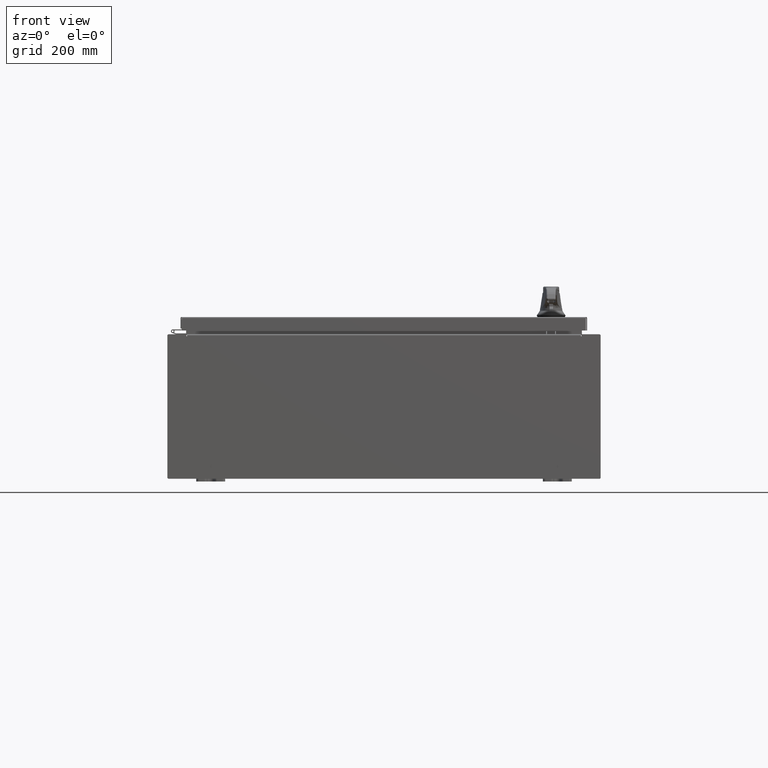
[diagram: clean part render]
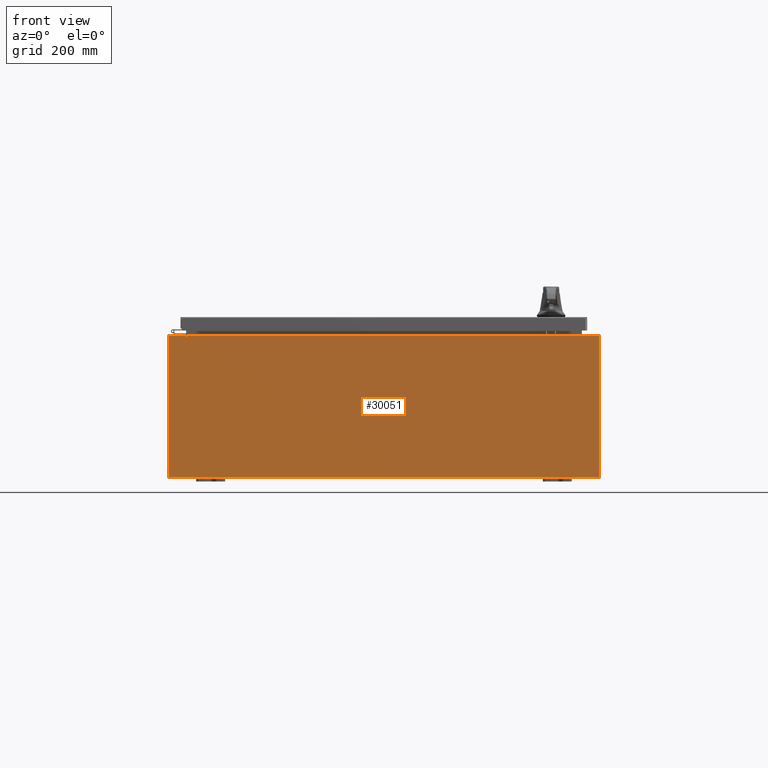
[diagram: same view with one face highlighted and labeled with its STEP entity id]
A machine part, front view. The second image highlights one B-rep face of the part: STEP entity #30051.
In plain terms, the highlighted planar face has unit normal (-0, 1, -0).
Its self-contained STEP definition (entity closure, byte-faithful):
#1115 = VECTOR ( 'NONE', #102279, 39.37007874015748100 ) ;
#1738 = DIRECTION ( 'NONE',  ( 0.0000000000000000000, 0.0000000000000000000, -1.000000000000000000 ) ) ;
#1952 = ORIENTED_EDGE ( 'NONE', *, *, #66459, .T. ) ;
#3289 = VERTEX_POINT ( 'NONE', #63352 ) ;
#4243 = VERTEX_POINT ( 'NONE', #44309 ) ;
#4447 = DIRECTION ( 'NONE',  ( 0.0000000000000000000, 0.0000000000000000000, 1.000000000000000000 ) ) ;
#4724 = VERTEX_POINT ( 'NONE', #93467 ) ;
#5218 = VERTEX_POINT ( 'NONE', #84844 ) ;
#5913 = CARTESIAN_POINT ( 'NONE',  ( -14.92530000000000200, 0.0000000000000000000, 4.925300000000000000 ) ) ;
#6889 = CARTESIAN_POINT ( 'NONE',  ( -13.63720000000000000, -0.0000000000000000000, 0.0000000000000000000 ) ) ;
#7014 = LINE ( 'NONE', #6889, #1115 ) ;
#12276 = LINE ( 'NONE', #70488, #59797 ) ;
#13625 = CARTESIAN_POINT ( 'NONE',  ( 13.65587499999999800, 0.0000000000000000000, 4.874950000000000100 ) ) ;
#16006 = DIRECTION ( 'NONE',  ( -0.0000000000000000000, 1.000000000000000000, -0.0000000000000000000 ) ) ;
#16038 = VERTEX_POINT ( 'NONE', #44181 ) ;
#16610 = LINE ( 'NONE', #47697, #61151 ) ;
#17008 = AXIS2_PLACEMENT_3D ( 'NONE', #113957, #19341, #85699 ) ;
#19341 = DIRECTION ( 'NONE',  ( 0.0000000000000000000, -1.000000000000000000, 0.0000000000000000000 ) ) ;
#21303 = ORIENTED_EDGE ( 'NONE', *, *, #108041, .T. ) ;
#21801 = DIRECTION ( 'NONE',  ( 1.000000000000000000, 0.0000000000000000000, 0.0000000000000000000 ) ) ;
#22780 = VECTOR ( 'NONE', #1738, 39.37007874015748100 ) ;
#22870 = LINE ( 'NONE', #74249, #92613 ) ;
#23188 = DIRECTION ( 'NONE',  ( 0.0000000000000000000, 0.0000000000000000000, -1.000000000000000000 ) ) ;
#23225 = DIRECTION ( 'NONE',  ( -1.000000000000000000, -0.0000000000000000000, -0.0000000000000000000 ) ) ;
#26979 = ORIENTED_EDGE ( 'NONE', *, *, #113821, .F. ) ;
#28057 = EDGE_CURVE ( 'NONE', #5218, #54111, #7014, .T. ) ;
#28165 = ORIENTED_EDGE ( 'NONE', *, *, #38741, .T. ) ;
#28280 = ORIENTED_EDGE ( 'NONE', *, *, #28057, .F. ) ;
#30051 = ADVANCED_FACE ( 'NONE', ( #32600 ), #94858, .F. ) ;
#30379 = CARTESIAN_POINT ( 'NONE',  ( -14.92530000000000200, 0.0000000000000000000, 4.925300000000000000 ) ) ;
#30885 = VECTOR ( 'NONE', #53176, 39.37007874015748100 ) ;
#30996 = ORIENTED_EDGE ( 'NONE', *, *, #76578, .F. ) ;
#32600 = FACE_OUTER_BOUND ( 'NONE', #36182, .T. ) ;
#33486 = CARTESIAN_POINT ( 'NONE',  ( 14.92529999999999800, 0.0000000000000000000, 4.925300000000000000 ) ) ;
#34382 = VECTOR ( 'NONE', #112466, 39.37007874015748100 ) ;
#34487 = VERTEX_POINT ( 'NONE', #86801 ) ;
#36182 = EDGE_LOOP ( 'NONE', ( #60086, #26979, #28280, #28165, #30996, #36503, #62125, #84310, #21303, #1952, #106540, #98680 ) ) ;
#36503 = ORIENTED_EDGE ( 'NONE', *, *, #106415, .F. ) ;
#38741 = EDGE_CURVE ( 'NONE', #5218, #16038, #70035, .T. ) ;
#39813 = CARTESIAN_POINT ( 'NONE',  ( 14.92529999999999800, 0.0000000000000000000, 4.925300000000000000 ) ) ;
#41872 = LINE ( 'NONE', #72957, #44854 ) ;
#42847 = CARTESIAN_POINT ( 'NONE',  ( -13.63720000000000000, -0.0000000000000000000, 4.874950000000000100 ) ) ;
#43219 = CARTESIAN_POINT ( 'NONE',  ( -14.92530000000000200, 0.0000000000000000000, -4.925300000000000000 ) ) ;
#43329 = VERTEX_POINT ( 'NONE', #43219 ) ;
#44181 = CARTESIAN_POINT ( 'NONE',  ( 13.63719999999999800, 0.0000000000000000000, 4.912300000000000100 ) ) ;
#44309 = CARTESIAN_POINT ( 'NONE',  ( -13.67455000000000000, 0.0000000000000000000, 4.874950000000000100 ) ) ;
#44696 = EDGE_CURVE ( 'NONE', #3289, #66275, #110140, .T. ) ;
#44854 = VECTOR ( 'NONE', #120287, 39.37007874015748100 ) ;
#47697 = CARTESIAN_POINT ( 'NONE',  ( -14.92530000000000200, 0.0000000000000000000, 4.925300000000000000 ) ) ;
#48205 = CIRCLE ( 'NONE', #56757, 0.01867499999999949400 ) ;
#48973 = CARTESIAN_POINT ( 'NONE',  ( 13.67454999999999800, 0.0000000000000000000, 4.874950000000000100 ) ) ;
#53176 = DIRECTION ( 'NONE',  ( 1.000000000000000000, 0.0000000000000000000, 0.0000000000000000000 ) ) ;
#54111 = VERTEX_POINT ( 'NONE', #42847 ) ;
#56757 = AXIS2_PLACEMENT_3D ( 'NONE', #13625, #79989, #23188 ) ;
#57279 = DIRECTION ( 'NONE',  ( 1.000000000000000000, 0.0000000000000000000, 0.0000000000000000000 ) ) ;
#58064 = EDGE_CURVE ( 'NONE', #3289, #84345, #16610, .T. ) ;
#59797 = VECTOR ( 'NONE', #23225, 39.37007874015748100 ) ;
#60086 = ORIENTED_EDGE ( 'NONE', *, *, #64925, .F. ) ;
#61151 = VECTOR ( 'NONE', #57279, 39.37007874015748100 ) ;
#61279 = CARTESIAN_POINT ( 'NONE',  ( 13.63719999999999800, 0.0000000000000000000, 0.0000000000000000000 ) ) ;
#62125 = ORIENTED_EDGE ( 'NONE', *, *, #44696, .F. ) ;
#63352 = CARTESIAN_POINT ( 'NONE',  ( 13.67455000000000000, 0.0000000000000000000, 4.925300000000000000 ) ) ;
#64420 = VERTEX_POINT ( 'NONE', #30379 ) ;
#64925 = EDGE_CURVE ( 'NONE', #4243, #4724, #22870, .T. ) ;
#65170 = CARTESIAN_POINT ( 'NONE',  ( 13.67454999999978500, -0.0000000000000000000, -5.935537951421795000E-013 ) ) ;
#66275 = VERTEX_POINT ( 'NONE', #48973 ) ;
#66459 = EDGE_CURVE ( 'NONE', #34487, #43329, #12276, .T. ) ;
#67448 = VERTEX_POINT ( 'NONE', #96337 ) ;
#69093 = CARTESIAN_POINT ( 'NONE',  ( -13.63720000000000400, -7.171100983368691200E-016, 4.912300000000000100 ) ) ;
#70035 = LINE ( 'NONE', #69093, #117574 ) ;
#70488 = CARTESIAN_POINT ( 'NONE',  ( -14.92530000000000200, 0.0000000000000000000, -4.925300000000000000 ) ) ;
#72842 = CARTESIAN_POINT ( 'NONE',  ( -13.65587500000000000, 0.0000000000000000000, 4.874950000000000100 ) ) ;
#72957 = CARTESIAN_POINT ( 'NONE',  ( -14.92530000000000200, 0.0000000000000000000, 4.925300000000000000 ) ) ;
#74249 = CARTESIAN_POINT ( 'NONE',  ( -13.67455000000000000, -0.0000000000000000000, 0.0000000000000000000 ) ) ;
#74848 = LINE ( 'NONE', #61279, #122418 ) ;
#76578 = EDGE_CURVE ( 'NONE', #67448, #16038, #74848, .T. ) ;
#79989 = DIRECTION ( 'NONE',  ( -0.0000000000000000000, 1.000000000000000000, -0.0000000000000000000 ) ) ;
#82346 = DIRECTION ( 'NONE',  ( 0.0000000000000000000, 0.0000000000000000000, -1.000000000000000000 ) ) ;
#83742 = DIRECTION ( 'NONE',  ( 0.0000000000000000000, 0.0000000000000000000, 1.000000000000000000 ) ) ;
#84310 = ORIENTED_EDGE ( 'NONE', *, *, #58064, .T. ) ;
#84345 = VERTEX_POINT ( 'NONE', #33486 ) ;
#84844 = CARTESIAN_POINT ( 'NONE',  ( -13.63720000000000000, -7.171100983368691200E-016, 4.912300000000000100 ) ) ;
#85699 = DIRECTION ( 'NONE',  ( 0.0000000000000000000, -0.0000000000000000000, -1.000000000000000000 ) ) ;
#86801 = CARTESIAN_POINT ( 'NONE',  ( 14.92529999999999800, 0.0000000000000000000, -4.925300000000000000 ) ) ;
#89823 = EDGE_CURVE ( 'NONE', #43329, #64420, #41872, .T. ) ;
#92613 = VECTOR ( 'NONE', #83742, 39.37007874015748100 ) ;
#93467 = CARTESIAN_POINT ( 'NONE',  ( -13.67455000000000000, 0.0000000000000000000, 4.925300000000000000 ) ) ;
#94564 = EDGE_CURVE ( 'NONE', #64420, #4724, #106627, .T. ) ;
#94858 = PLANE ( 'NONE',  #17008 ) ;
#96337 = CARTESIAN_POINT ( 'NONE',  ( 13.63719999999999800, 0.0000000000000000000, 4.874950000000000100 ) ) ;
#98462 = LINE ( 'NONE', #39813, #22780 ) ;
#98680 = ORIENTED_EDGE ( 'NONE', *, *, #94564, .T. ) ;
#102279 = DIRECTION ( 'NONE',  ( 0.0000000000000000000, 0.0000000000000000000, -1.000000000000000000 ) ) ;
#105656 = AXIS2_PLACEMENT_3D ( 'NONE', #72842, #16006, #82346 ) ;
#106415 = EDGE_CURVE ( 'NONE', #66275, #67448, #48205, .T. ) ;
#106540 = ORIENTED_EDGE ( 'NONE', *, *, #89823, .T. ) ;
#106627 = LINE ( 'NONE', #5913, #30885 ) ;
#108041 = EDGE_CURVE ( 'NONE', #84345, #34487, #98462, .T. ) ;
#110140 = LINE ( 'NONE', #65170, #34382 ) ;
#112466 = DIRECTION ( 'NONE',  ( -4.340572780400004900E-014, 0.0000000000000000000, -1.000000000000000000 ) ) ;
#113821 = EDGE_CURVE ( 'NONE', #54111, #4243, #119975, .T. ) ;
#113957 = CARTESIAN_POINT ( 'NONE',  ( 0.0000000000000000000, 0.0000000000000000000, 0.0000000000000000000 ) ) ;
#117574 = VECTOR ( 'NONE', #21801, 39.37007874015748100 ) ;
#119975 = CIRCLE ( 'NONE', #105656, 0.01867499999999949400 ) ;
#120287 = DIRECTION ( 'NONE',  ( -0.0000000000000000000, -0.0000000000000000000, 1.000000000000000000 ) ) ;
#122418 = VECTOR ( 'NONE', #4447, 39.37007874015748100 ) ;